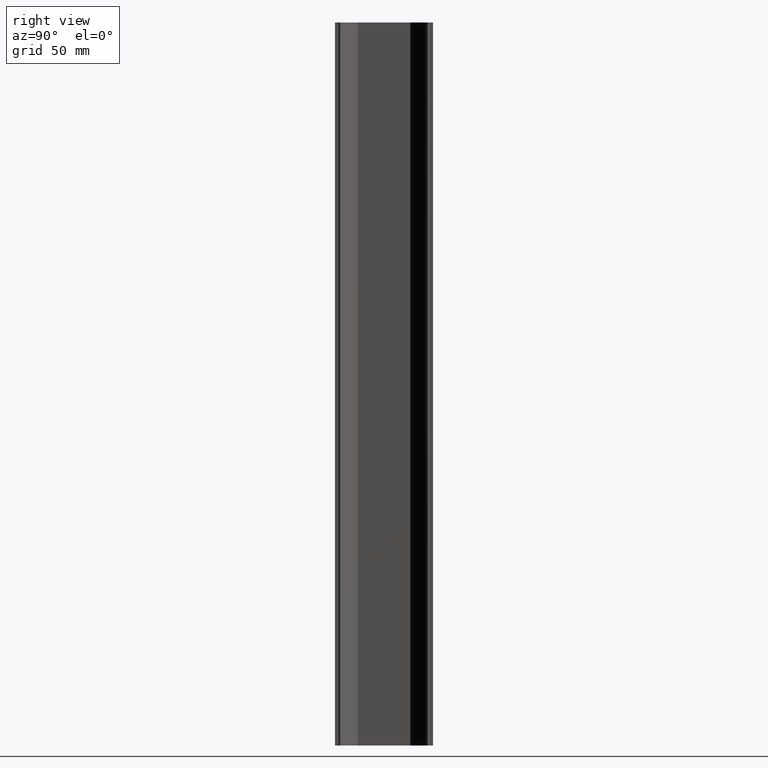
[diagram: clean part render]
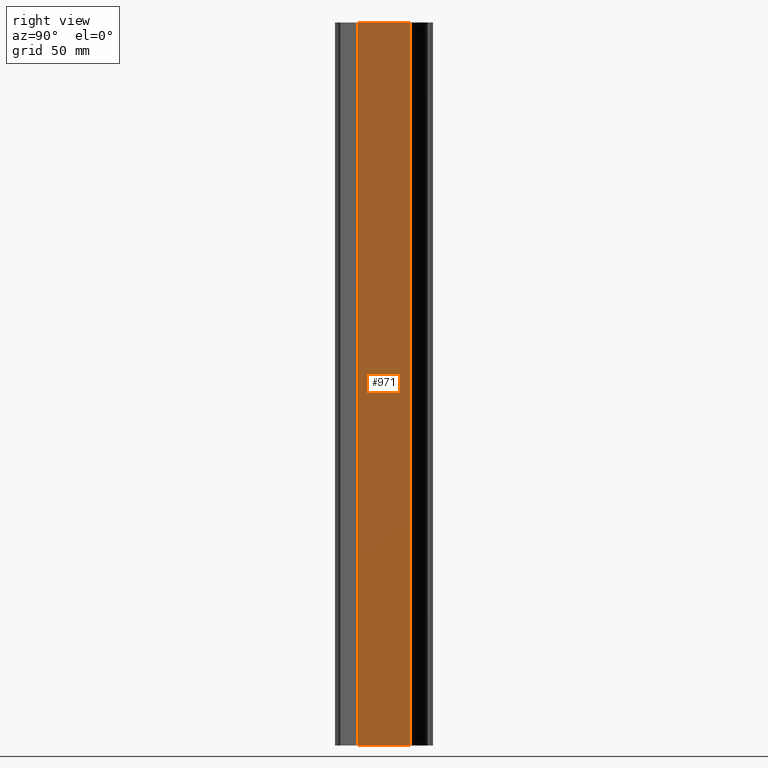
[diagram: same view with one face highlighted and labeled with its STEP entity id]
A machine part, right view. The second image highlights one B-rep face of the part: STEP entity #971.
In plain terms, the highlighted planar face has unit normal (1, 0, 0).
Its self-contained STEP definition (entity closure, byte-faithful):
#53=PLANE('',#1062);
#101=FACE_OUTER_BOUND('',#151,.T.);
#151=EDGE_LOOP('',(#907,#908,#909,#910));
#172=LINE('',#1377,#290);
#221=LINE('',#1485,#339);
#263=LINE('',#1586,#381);
#270=LINE('',#1594,#388);
#290=VECTOR('',#1117,10.);
#339=VECTOR('',#1210,10.);
#381=VECTOR('',#1302,10.);
#388=VECTOR('',#1311,10.);
#427=VERTEX_POINT('',#1373);
#429=VERTEX_POINT('',#1376);
#464=VERTEX_POINT('',#1479);
#466=VERTEX_POINT('',#1483);
#527=EDGE_CURVE('',#429,#427,#172,.T.);
#581=EDGE_CURVE('',#464,#466,#221,.T.);
#631=EDGE_CURVE('',#429,#466,#263,.T.);
#638=EDGE_CURVE('',#427,#464,#270,.T.);
#907=ORIENTED_EDGE('',*,*,#527,.T.);
#908=ORIENTED_EDGE('',*,*,#638,.T.);
#909=ORIENTED_EDGE('',*,*,#581,.T.);
#910=ORIENTED_EDGE('',*,*,#631,.F.);
#971=ADVANCED_FACE('',(#101),#53,.T.);
#1062=AXIS2_PLACEMENT_3D('',#1597,#1316,#1317);
#1117=DIRECTION('',(0.,0.,1.));
#1210=DIRECTION('',(0.,0.,-1.));
#1302=DIRECTION('',(7.93016446160826E-17,-1.,0.));
#1311=DIRECTION('',(7.93016446160826E-17,-1.,0.));
#1316=DIRECTION('center_axis',(1.,7.93016446160826E-17,0.));
#1317=DIRECTION('ref_axis',(-7.93016446160826E-17,1.,0.));
#1373=CARTESIAN_POINT('',(15.,14.9999999957005,413.));
#1376=CARTESIAN_POINT('',(15.,14.9999999957005,0.));
#1377=CARTESIAN_POINT('',(15.,14.9999999957005,0.));
#1479=CARTESIAN_POINT('',(15.,-15.0000000012959,413.));
#1483=CARTESIAN_POINT('',(15.,-15.0000000012959,0.));
#1485=CARTESIAN_POINT('',(15.,-15.0000000012959,0.));
#1586=CARTESIAN_POINT('',(15.,-14.,0.));
#1594=CARTESIAN_POINT('',(15.,-14.,413.));
#1597=CARTESIAN_POINT('Origin',(15.,-28.,0.));